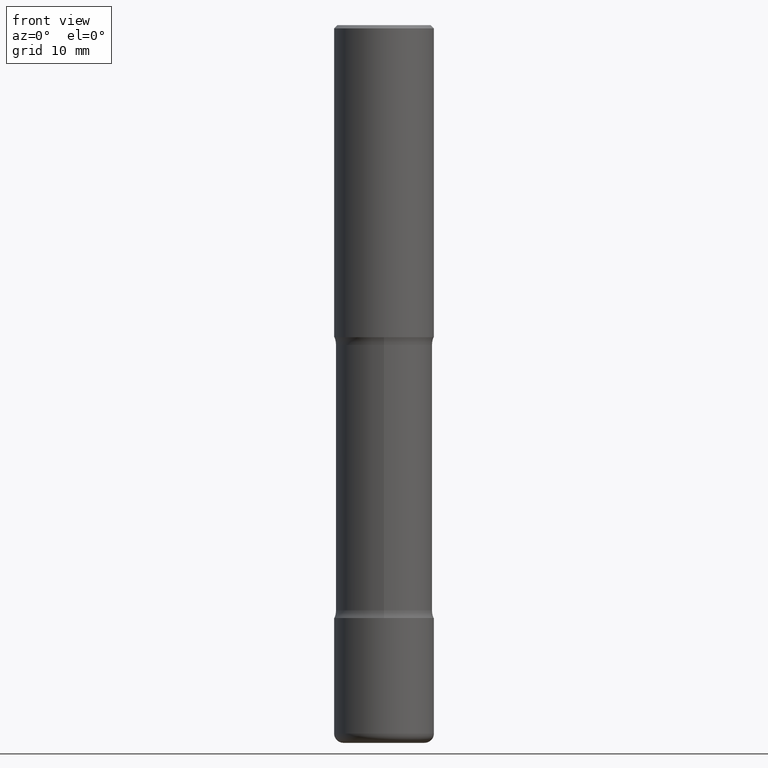
[diagram: clean part render]
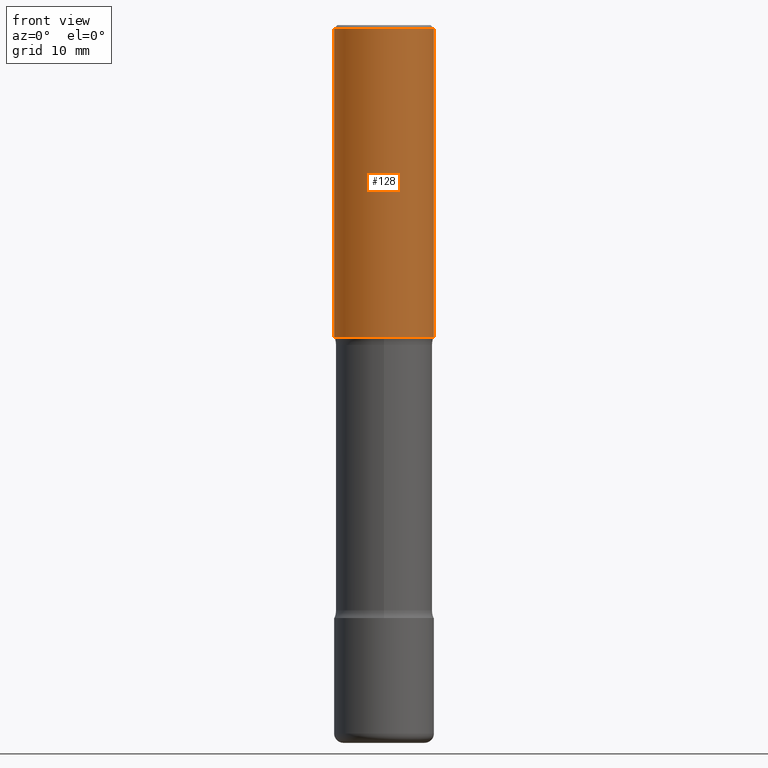
[diagram: same view with one face highlighted and labeled with its STEP entity id]
A machine part, front view. The second image highlights one B-rep face of the part: STEP entity #128.
In plain terms, the highlighted cylindrical surface (partial cylindrical patch) has radius 7.9997 mm, axis along (-0, 0, 1).
Its self-contained STEP definition (entity closure, byte-faithful):
#45 = DIRECTION ( 'NONE',  ( -2.445468806185136597E-29, 3.491481338843145583E-15, 1.000000000000000000 ) ) ;
#50 = CARTESIAN_POINT ( 'NONE',  ( 4.890937612370289799E-31, -6.982962677686315028E-17, -0.02000000000000006981 ) ) ;
#52 = DIRECTION ( 'NONE',  ( -2.445468806185136597E-29, 3.491481338843145583E-15, 1.000000000000000000 ) ) ;
#73 = ORIENTED_EDGE ( 'NONE', *, *, #508, .F. ) ;
#82 = EDGE_CURVE ( 'NONE', #86, #287, #232, .T. ) ;
#86 = VERTEX_POINT ( 'NONE', #361 ) ;
#101 = CIRCLE ( 'NONE', #551, 0.3149499999999998967 ) ;
#103 = CARTESIAN_POINT ( 'NONE',  ( 0.3149500000000000077, -2.199284095337289871E-15, 1.535751875536930130E-29 ) ) ;
#116 = CIRCLE ( 'NONE', #198, 0.3149500000000001743 ) ;
#128 = ADVANCED_FACE ( 'NONE', ( #403 ), #501, .T. ) ;
#136 = CARTESIAN_POINT ( 'NONE',  ( 0.000000000000000000, 0.000000000000000000, 0.000000000000000000 ) ) ;
#152 = DIRECTION ( 'NONE',  ( 1.000000000000000000, -6.982962677686265922E-15, 0.000000000000000000 ) ) ;
#183 = CARTESIAN_POINT ( 'NONE',  ( -0.3149500000000001743, -1.233550974868359743E-15, -1.968500000000000139 ) ) ;
#185 = VERTEX_POINT ( 'NONE', #183 ) ;
#197 = VECTOR ( 'NONE', #402, 39.37007874015748143 ) ;
#198 = AXIS2_PLACEMENT_3D ( 'NONE', #298, #45, #291 ) ;
#232 = LINE ( 'NONE', #103, #197 ) ;
#248 = VERTEX_POINT ( 'NONE', #394 ) ;
#253 = ORIENTED_EDGE ( 'NONE', *, *, #326, .T. ) ;
#269 = ORIENTED_EDGE ( 'NONE', *, *, #82, .T. ) ;
#287 = VERTEX_POINT ( 'NONE', #300 ) ;
#291 = DIRECTION ( 'NONE',  ( 1.000000000000000000, -6.982962677686269866E-15, 0.000000000000000000 ) ) ;
#298 = CARTESIAN_POINT ( 'NONE',  ( 4.813905344975441835E-29, -6.872981015512731707E-15, -1.968500000000000139 ) ) ;
#300 = CARTESIAN_POINT ( 'NONE',  ( 0.3149499999999998967, -2.230543471175006266E-15, -0.02000000000000006981 ) ) ;
#326 = EDGE_CURVE ( 'NONE', #185, #86, #116, .T. ) ;
#327 = AXIS2_PLACEMENT_3D ( 'NONE', #136, #498, #486 ) ;
#352 = CARTESIAN_POINT ( 'NONE',  ( -0.3149500000000000077, 2.237854346276435590E-15, -1.549218606675782676E-29 ) ) ;
#361 = CARTESIAN_POINT ( 'NONE',  ( 0.3149500000000001743, -9.072265110850023156E-15, -1.968500000000000139 ) ) ;
#362 = DIRECTION ( 'NONE',  ( -2.445468806185136877E-29, 3.491481338843145188E-15, 1.000000000000000000 ) ) ;
#372 = EDGE_LOOP ( 'NONE', ( #73, #253, #269, #555 ) ) ;
#394 = CARTESIAN_POINT ( 'NONE',  ( -0.3149499999999998967, 2.129454468560425784E-15, -0.02000000000000006981 ) ) ;
#402 = DIRECTION ( 'NONE',  ( -2.445468806185136877E-29, 3.491481338843145188E-15, 1.000000000000000000 ) ) ;
#403 = FACE_OUTER_BOUND ( 'NONE', #372, .T. ) ;
#442 = VECTOR ( 'NONE', #362, 39.37007874015748143 ) ;
#444 = LINE ( 'NONE', #352, #442 ) ;
#486 = DIRECTION ( 'NONE',  ( 1.000000000000000000, -6.982962677686266711E-15, 4.876176775795936353E-29 ) ) ;
#498 = DIRECTION ( 'NONE',  ( -2.445468806185136597E-29, 3.491481338843145583E-15, 1.000000000000000000 ) ) ;
#501 = CYLINDRICAL_SURFACE ( 'NONE', #327, 0.3149500000000000077 ) ;
#508 = EDGE_CURVE ( 'NONE', #185, #248, #444, .T. ) ;
#547 = EDGE_CURVE ( 'NONE', #248, #287, #101, .T. ) ;
#551 = AXIS2_PLACEMENT_3D ( 'NONE', #50, #52, #152 ) ;
#555 = ORIENTED_EDGE ( 'NONE', *, *, #547, .F. ) ;